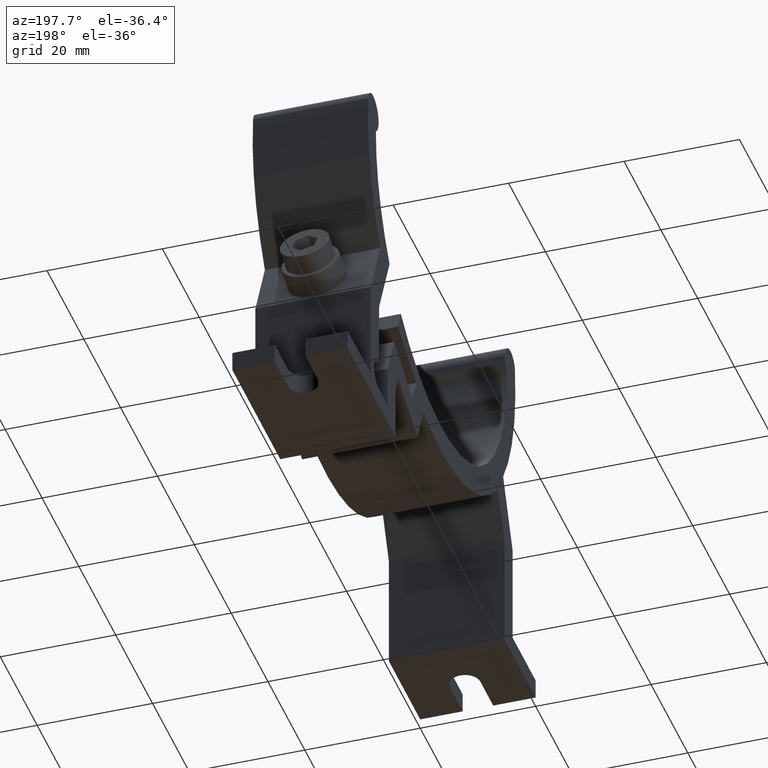
[diagram: clean part render]
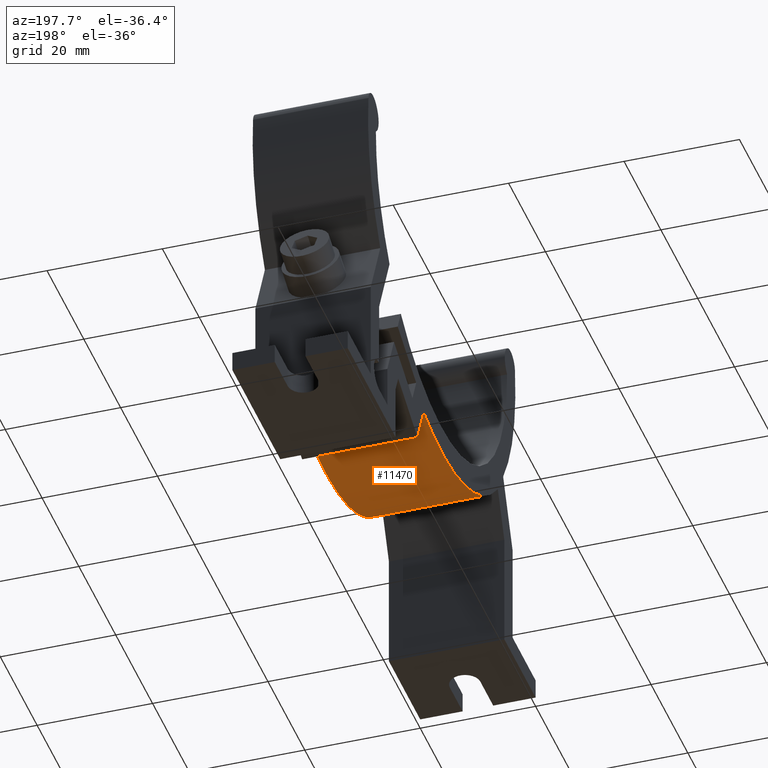
[diagram: same view with one face highlighted and labeled with its STEP entity id]
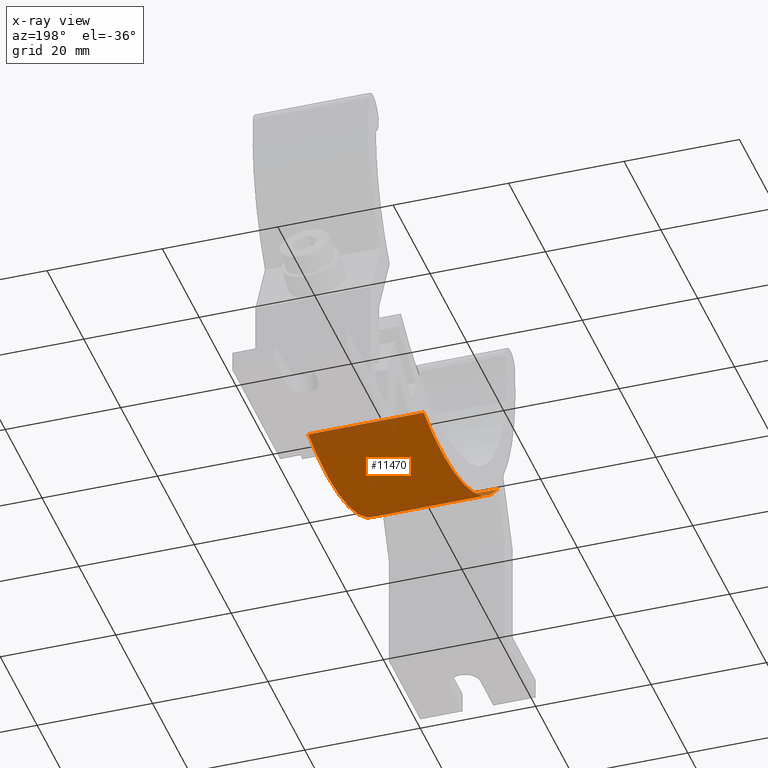
[diagram: x-ray of the same camera — body ghosted, the highlighted face saturated]
A machine part, auxiliary view. The second image highlights one B-rep face of the part: STEP entity #11470.
The next image is the same camera in x-ray: the body ghosted, the highlighted face saturated — about 15% of this face is hidden behind the body in this view.
In plain terms, the highlighted cylindrical surface (partial cylindrical patch) has radius 40.5 mm, axis along (-1, 0, 0).
Its self-contained STEP definition (entity closure, byte-faithful):
#3280=CARTESIAN_POINT('',(9.83009971049241,-39.2889187899308,0.1));
#3290=VERTEX_POINT('',#3280);
#3320=CARTESIAN_POINT('',(9.8300997104924,-39.2889187899308,20.1));
#3330=DIRECTION('',(0.,0.,-1.));
#3340=VECTOR('',#3330,1.);
#3350=LINE('',#3320,#3340);
#3360=CARTESIAN_POINT('',(9.83009971049241,-39.2889187899308,20.1));
#3370=VERTEX_POINT('',#3360);
#3380=EDGE_CURVE('',#3370,#3290,#3350,.T.);
#4780=CARTESIAN_POINT('',(-30.4816484383309,-26.6668166169492,0.1));
#4790=VERTEX_POINT('',#4780);
#4820=CARTESIAN_POINT('',(0.,0.,0.100000000000001));
#4830=DIRECTION('',(0.,0.,-1.));
#4840=DIRECTION('',(-1.,0.,0.));
#4850=AXIS2_PLACEMENT_3D('',#4820,#4830,#4840);
#4860=CIRCLE('',#4850,40.5);
#4870=EDGE_CURVE('',#3290,#4790,#4860,.T.);
#9780=CARTESIAN_POINT('',(0.,0.,20.1));
#9790=DIRECTION('',(0.,0.,1.));
#9800=DIRECTION('',(-1.,0.,0.));
#9810=AXIS2_PLACEMENT_3D('',#9780,#9790,#9800);
#9820=CIRCLE('',#9810,40.5);
#9830=CARTESIAN_POINT('',(-30.4816484383309,-26.6668166169492,20.1));
#9840=VERTEX_POINT('',#9830);
#9850=EDGE_CURVE('',#9840,#3370,#9820,.T.);
#11310=CARTESIAN_POINT('',(0.,0.,20.1));
#11320=DIRECTION('',(0.,0.,-1.));
#11330=DIRECTION('',(-1.,0.,0.));
#11340=AXIS2_PLACEMENT_3D('',#11310,#11320,#11330);
#11350=CYLINDRICAL_SURFACE('',#11340,40.5);
#11360=CARTESIAN_POINT('',(-30.4816484383309,-26.6668166169492,20.1));
#11370=DIRECTION('',(0.,0.,-1.));
#11380=VECTOR('',#11370,1.);
#11390=LINE('',#11360,#11380);
#11400=EDGE_CURVE('',#9840,#4790,#11390,.T.);
#11410=ORIENTED_EDGE('',*,*,#11400,.T.);
#11420=ORIENTED_EDGE('',*,*,#9850,.F.);
#11430=ORIENTED_EDGE('',*,*,#3380,.F.);
#11440=ORIENTED_EDGE('',*,*,#4870,.F.);
#11450=EDGE_LOOP('',(#11440,#11430,#11420,#11410));
#11460=FACE_OUTER_BOUND('',#11450,.T.);
#11470=ADVANCED_FACE('',(#11460),#11350,.T.);